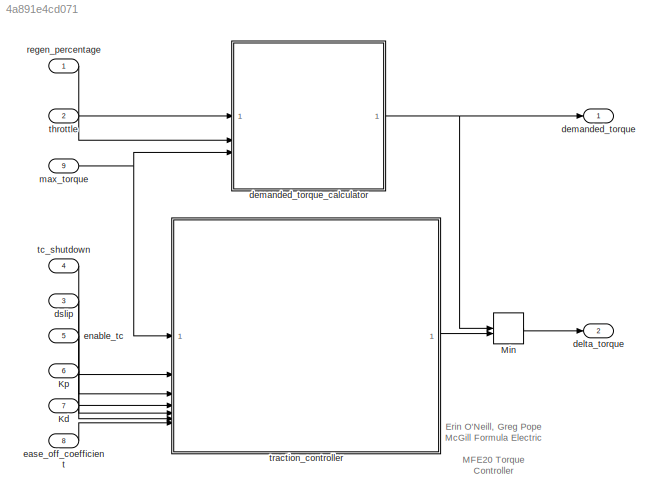
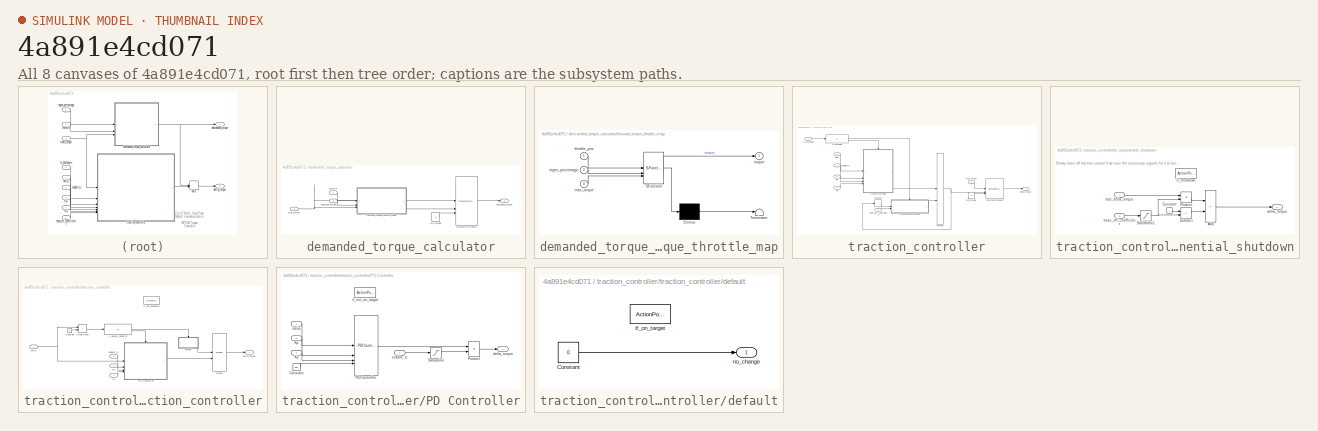
[diagram: thumbnail index - all 8 canvases of the model, root first then tree order]
MODEL slx_4a891e4cd071
KIND model
CONFIG AbsTol = auto
CONFIG EnableMultiTasking = off
CONFIG FixedStep = auto
CONFIG MaxStep = auto
CONFIG MinStep = auto
CONFIG RelTol = 1e-3
CONFIG SampleTimeConstraint = Unconstrained
CONFIG SolverName = VariableStepAuto
CONFIG StartTime = 0.0
CONFIG StopTime = 10.0
BLOCK [Inport] Kd
  Port = 7
BLOCK [Inport] Kp
  Port = 6
BLOCK [MinMax] Min
  Inputs = 2
BLOCK [Outport] delta_torque
  Port = 2
  VectorParamsAs1DForOutWhenUnconnected = off
BLOCK [Outport] demanded_torque
  VectorParamsAs1DForOutWhenUnconnected = off
BLOCK [SubSystem] demanded_torque_calculator
BLOCK [Reference] demanded_torque_calculator/Saturation Dynamic  REF=simulink/Discontinuities/Saturation
Dynamic
  SourceBlock = simulink/Discontinuities/Saturation\nDynamic
  SourceType = Saturation Dynamic
BLOCK [Outport] demanded_torque_calculator/demanded_torque
  VectorParamsAs1DForOutWhenUnconnected = off
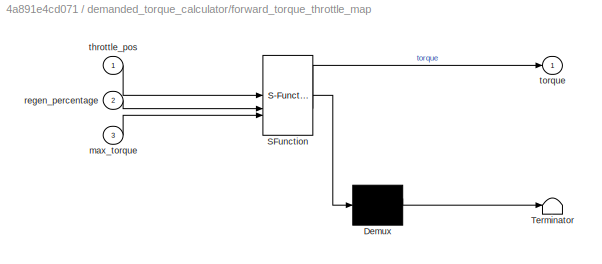
BLOCK [SubSystem] demanded_torque_calculator/forward_torque_throttle_map
  ErrorFcn = Stateflow.Translate.translate
  PermitHierarchicalResolution = ExplicitOnly
  SFBlockType = MATLAB Function
  TreatAsAtomicUnit = on
BLOCK [Demux] demanded_torque_calculator/forward_torque_throttle_map/ Demux 
  Outputs = 1
BLOCK [S-Function] demanded_torque_calculator/forward_torque_throttle_map/ SFunction 
  EnableBusSupport = on
  FunctionName = sf_sfun
  PortCounts = [3 2]
  SFcnIsStateOwnerBlock = off
  SFunctionDeploymentMode = off
  Tag = Stateflow S-Function 2
BLOCK [Terminator] demanded_torque_calculator/forward_torque_throttle_map/ Terminator 
BLOCK [Inport] demanded_torque_calculator/forward_torque_throttle_map/max_torque
  Port = 3
BLOCK [Inport] demanded_torque_calculator/forward_torque_throttle_map/regen_percentage
  Port = 2
BLOCK [Inport] demanded_torque_calculator/forward_torque_throttle_map/throttle_pos
BLOCK [Outport] demanded_torque_calculator/forward_torque_throttle_map/torque
  VectorParamsAs1DForOutWhenUnconnected = off
BLOCK [Inport] demanded_torque_calculator/max_torque
  Port = 3
BLOCK [Constant] demanded_torque_calculator/min_torque
  Value = 0
BLOCK [Inport] demanded_torque_calculator/regen_percentage
BLOCK [Inport] demanded_torque_calculator/throttle
  Port = 2
BLOCK [Inport] dslip
  Port = 3
BLOCK [Inport] ease_off_coefficient
  Port = 8
BLOCK [Inport] enable_tc
  Port = 5
BLOCK [Inport] max_torque
  Port = 9
BLOCK [Inport] regen_percentage
BLOCK [Inport] tc_shutdown
  Port = 4
BLOCK [Inport] throttle
  Port = 2
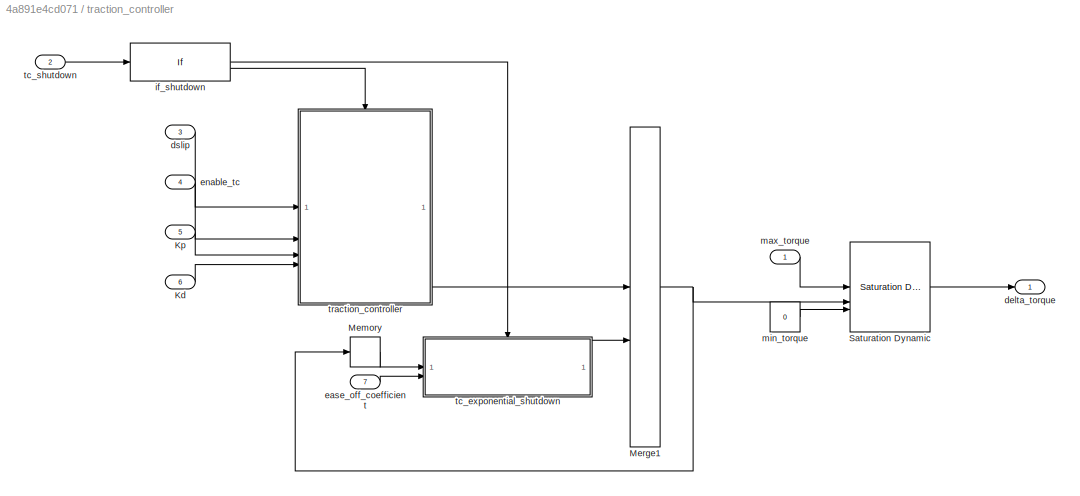
BLOCK [SubSystem] traction_controller
BLOCK [Inport] traction_controller/Kd
  Port = 6
BLOCK [Inport] traction_controller/Kp
  Port = 5
BLOCK [Memory] traction_controller/Memory
BLOCK [Merge] traction_controller/Merge1
BLOCK [Reference] traction_controller/Saturation Dynamic  REF=simulink/Discontinuities/Saturation
Dynamic
  SourceBlock = simulink/Discontinuities/Saturation\nDynamic
  SourceType = Saturation Dynamic
BLOCK [Outport] traction_controller/delta_torque
  VectorParamsAs1DForOutWhenUnconnected = off
BLOCK [Inport] traction_controller/dslip
  Port = 3
BLOCK [Inport] traction_controller/ease_off_coefficient
  Port = 7
BLOCK [Inport] traction_controller/enable_tc
  Port = 4
BLOCK [If] traction_controller/if_shutdown
  IfExpression = u1 == 1
BLOCK [Inport] traction_controller/max_torque
BLOCK [Constant] traction_controller/min_torque
  Value = 0
BLOCK [SubSystem] traction_controller/tc_exponential_shutdown
  TreatAsAtomicUnit = on
BLOCK [Sum] traction_controller/tc_exponential_shutdown/Add
  IconShape = rectangular
  Inputs = +-
BLOCK [Constant] traction_controller/tc_exponential_shutdown/Constant
BLOCK [Product] traction_controller/tc_exponential_shutdown/Product
BLOCK [Saturate] traction_controller/tc_exponential_shutdown/Saturation1
  LowerLimit = 0
  UpperLimit = 1
BLOCK [Sum] traction_controller/tc_exponential_shutdown/Subtract
  IconShape = rectangular
  Inputs = +-
BLOCK [Outport] traction_controller/tc_exponential_shutdown/delta_torque
  VectorParamsAs1DForOutWhenUnconnected = off
BLOCK [Inport] traction_controller/tc_exponential_shutdown/ease_off_coefficient
  Port = 2
BLOCK [ActionPort] traction_controller/tc_exponential_shutdown/if_shutdown
  ActionPortLabel = if(u1 == 1)
BLOCK [Inport] traction_controller/tc_exponential_shutdown/last_delta_torque
BLOCK [Inport] traction_controller/tc_shutdown
  Port = 2
BLOCK [SubSystem] traction_controller/traction_controller
  TreatAsAtomicUnit = on
BLOCK [Constant] traction_controller/traction_controller/Constant
  Value = 0
BLOCK [RelationalOperator] traction_controller/traction_controller/GreaterThan
  InputSameDT = off
  Operator = >
  OutDataTypeStr = boolean
  RndMeth = Simplest
BLOCK [Inport] traction_controller/traction_controller/Kd
  Port = 4
BLOCK [Inport] traction_controller/traction_controller/Kp
  Port = 3
BLOCK [Merge] traction_controller/traction_controller/Merge
BLOCK [SubSystem] traction_controller/traction_controller/PD Controller
  TreatAsAtomicUnit = on
BLOCK [Constant] traction_controller/traction_controller/PD Controller/Constant
  Value = 100
BLOCK [Inport] traction_controller/traction_controller/PD Controller/Kd
  Port = 4
BLOCK [Inport] traction_controller/traction_controller/PD Controller/Kp
  Port = 3
BLOCK [Reference] traction_controller/traction_controller/PD Controller/PID Controller  REF=slpidlib/PID Controller
  SourceBlock = slpidlib/PID Controller
  SourceType = PID 1dof
BLOCK [Product] traction_controller/traction_controller/PD Controller/Product
BLOCK [Saturate] traction_controller/traction_controller/PD Controller/Saturation
  LowerLimit = 0
  OutDataTypeStr = uint8
  UpperLimit = 1
BLOCK [Outport] traction_controller/traction_controller/PD Controller/delta_torque
  VectorParamsAs1DForOutWhenUnconnected = off
BLOCK [Inport] traction_controller/traction_controller/PD Controller/dslip
BLOCK [Inport] traction_controller/traction_controller/PD Controller/enable_tc
  Port = 2
BLOCK [ActionPort] traction_controller/traction_controller/PD Controller/if_not_on_target
  ActionPortLabel = else
BLOCK [SubSystem] traction_controller/traction_controller/default
  TreatAsAtomicUnit = on
BLOCK [Constant] traction_controller/traction_controller/default/Constant
  Value = 0
BLOCK [ActionPort] traction_controller/traction_controller/default/if_on_target
  ActionPortLabel = if(u1 == 0)
BLOCK [Outport] traction_controller/traction_controller/default/no_change
  VectorParamsAs1DForOutWhenUnconnected = off
BLOCK [Outport] traction_controller/traction_controller/delta_torque
  VectorParamsAs1DForOutWhenUnconnected = off
BLOCK [Inport] traction_controller/traction_controller/dslip
BLOCK [Inport] traction_controller/traction_controller/enable_tc
  Port = 2
BLOCK [If] traction_controller/traction_controller/if_below_target_sr
  IfExpression = u1 == 0
BLOCK [ActionPort] traction_controller/traction_controller/if_not_shutdown
  ActionPortLabel = else
ANNOTATION (root): Erin O'Neill, Greg Pope McGill Formula Electric MFE20 Torque Controller
ANNOTATION traction_controller/tc_exponential_shutdown: Slowly ease off traction control if we lose the necessary signals for it to function
LINE Kd:1 -> traction_controller:6
LINE Kp:1 -> traction_controller:5
LINE Min:1 -> delta_torque:1
LINE demanded_torque_calculator/Saturation Dynamic:1 -> demanded_torque_calculator/demanded_torque:1
LINE demanded_torque_calculator/forward_torque_throttle_map:1 -> demanded_torque_calculator/Saturation Dynamic:2
NET demanded_torque_calculator/max_torque:1 -> demanded_torque_calculator/Saturation Dynamic:1, demanded_torque_calculator/forward_torque_throttle_map:3
LINE demanded_torque_calculator/min_torque:1 -> demanded_torque_calculator/Saturation Dynamic:3
LINE demanded_torque_calculator/regen_percentage:1 -> demanded_torque_calculator/forward_torque_throttle_map:2
LINE demanded_torque_calculator/throttle:1 -> demanded_torque_calculator/forward_torque_throttle_map:1
NET demanded_torque_calculator:1 -> Min:1, demanded_torque:1
LINE dslip:1 -> traction_controller:3
LINE ease_off_coefficient:1 -> traction_controller:7
LINE enable_tc:1 -> traction_controller:4
NET max_torque:1 -> demanded_torque_calculator:3, traction_controller:1
LINE regen_percentage:1 -> demanded_torque_calculator:1
LINE tc_shutdown:1 -> traction_controller:2
LINE throttle:1 -> demanded_torque_calculator:2
LINE traction_controller/Kd:1 -> traction_controller/traction_controller:4
LINE traction_controller/Kp:1 -> traction_controller/traction_controller:3
LINE traction_controller/Memory:1 -> traction_controller/tc_exponential_shutdown:1
NET traction_controller/Merge1:1 -> traction_controller/Memory:1, traction_controller/Saturation Dynamic:2
LINE traction_controller/Saturation Dynamic:1 -> traction_controller/delta_torque:1
LINE traction_controller/dslip:1 -> traction_controller/traction_controller:1
LINE traction_controller/ease_off_coefficient:1 -> traction_controller/tc_exponential_shutdown:2
LINE traction_controller/enable_tc:1 -> traction_controller/traction_controller:2
LINE traction_controller/if_shutdown:1 -> traction_controller/tc_exponential_shutdown:ifaction
LINE traction_controller/if_shutdown:2 -> traction_controller/traction_controller:ifaction
LINE traction_controller/max_torque:1 -> traction_controller/Saturation Dynamic:1
LINE traction_controller/min_torque:1 -> traction_controller/Saturation Dynamic:3
LINE traction_controller/tc_exponential_shutdown/Add:1 -> traction_controller/tc_exponential_shutdown/delta_torque:1
LINE traction_controller/tc_exponential_shutdown/Constant:1 -> traction_controller/tc_exponential_shutdown/Subtract:1
LINE traction_controller/tc_exponential_shutdown/Product:1 -> traction_controller/tc_exponential_shutdown/Add:1
NET traction_controller/tc_exponential_shutdown/Saturation1:1 -> traction_controller/tc_exponential_shutdown/Product:2, traction_controller/tc_exponential_shutdown/Subtract:2
LINE traction_controller/tc_exponential_shutdown/Subtract:1 -> traction_controller/tc_exponential_shutdown/Add:2
LINE traction_controller/tc_exponential_shutdown/ease_off_coefficient:1 -> traction_controller/tc_exponential_shutdown/Saturation1:1
LINE traction_controller/tc_exponential_shutdown/last_delta_torque:1 -> traction_controller/tc_exponential_shutdown/Product:1
LINE traction_controller/tc_exponential_shutdown:1 -> traction_controller/Merge1:2
LINE traction_controller/tc_shutdown:1 -> traction_controller/if_shutdown:1
LINE traction_controller/traction_controller/Constant:1 -> traction_controller/traction_controller/GreaterThan:2
LINE traction_controller/traction_controller/GreaterThan:1 -> traction_controller/traction_controller/if_below_target_sr:1
LINE traction_controller/traction_controller/Kd:1 -> traction_controller/traction_controller/PD Controller:4
LINE traction_controller/traction_controller/Kp:1 -> traction_controller/traction_controller/PD Controller:3
LINE traction_controller/traction_controller/Merge:1 -> traction_controller/traction_controller/delta_torque:1
LINE traction_controller/traction_controller/PD Controller/Constant:1 -> traction_controller/traction_controller/PD Controller/PID Controller:4
LINE traction_controller/traction_controller/PD Controller/Kd:1 -> traction_controller/traction_controller/PD Controller/PID Controller:3
LINE traction_controller/traction_controller/PD Controller/Kp:1 -> traction_controller/traction_controller/PD Controller/PID Controller:2
LINE traction_controller/traction_controller/PD Controller/PID Controller:1 -> traction_controller/traction_controller/PD Controller/Product:1
LINE traction_controller/traction_controller/PD Controller/Product:1 -> traction_controller/traction_controller/PD Controller/delta_torque:1
LINE traction_controller/traction_controller/PD Controller/Saturation:1 -> traction_controller/traction_controller/PD Controller/Product:2
LINE traction_controller/traction_controller/PD Controller/dslip:1 -> traction_controller/traction_controller/PD Controller/PID Controller:1
LINE traction_controller/traction_controller/PD Controller/enable_tc:1 -> traction_controller/traction_controller/PD Controller/Saturation:1
LINE traction_controller/traction_controller/PD Controller:1 -> traction_controller/traction_controller/Merge:2
LINE traction_controller/traction_controller/default/Constant:1 -> traction_controller/traction_controller/default/no_change:1
LINE traction_controller/traction_controller/default:1 -> traction_controller/traction_controller/Merge:1
NET traction_controller/traction_controller/dslip:1 -> traction_controller/traction_controller/GreaterThan:1, traction_controller/traction_controller/PD Controller:1
LINE traction_controller/traction_controller/enable_tc:1 -> traction_controller/traction_controller/PD Controller:2
LINE traction_controller/traction_controller/if_below_target_sr:1 -> traction_controller/traction_controller/default:ifaction
LINE traction_controller/traction_controller/if_below_target_sr:2 -> traction_controller/traction_controller/PD Controller:ifaction
LINE traction_controller/traction_controller:1 -> traction_controller/Merge1:1
LINE traction_controller:1 -> Min:2
note: NET lines group one-source signal fan-out (src -> all destinations, sorted); 1:1 wires keep LINE
CHART demanded_torque_calculator/forward_torque_throttle_map states=1 transitions=1
  STATE_LABEL 'eML_blk_kernel()'
  STATE_LABEL 'SCRIPT:\nfunction torque = forward_torque_throttle_map(throttle_pos, regen_percentage, max_torque)\n\nif throttle_pos <= .05 && throttle_pos >= 0 % deadzone of 5%\n    torque = 0; \n\nelseif regen_percentage == 0\n    if (throttle_pos - .05) < 0\n        torque = 0; \n    else\n        torque = ((throttle_pos - .05)/.95) * max_torque; % regen is off, .05 to 1 throttle is 0 to max torque\n    end\n    \nelse \n ...<+267ch>'
CHART  states=0 transitions=0
